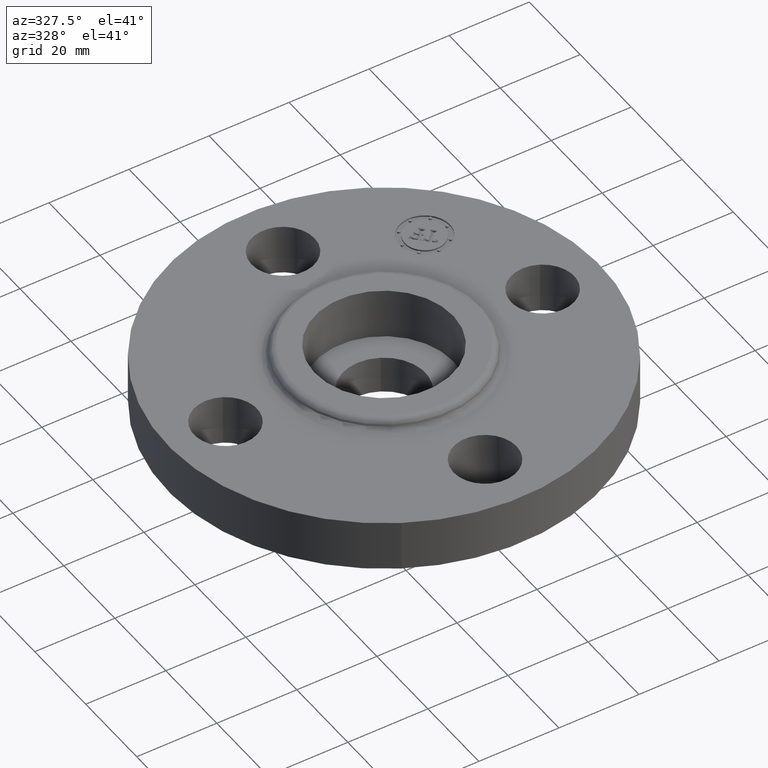
[diagram: clean part render]
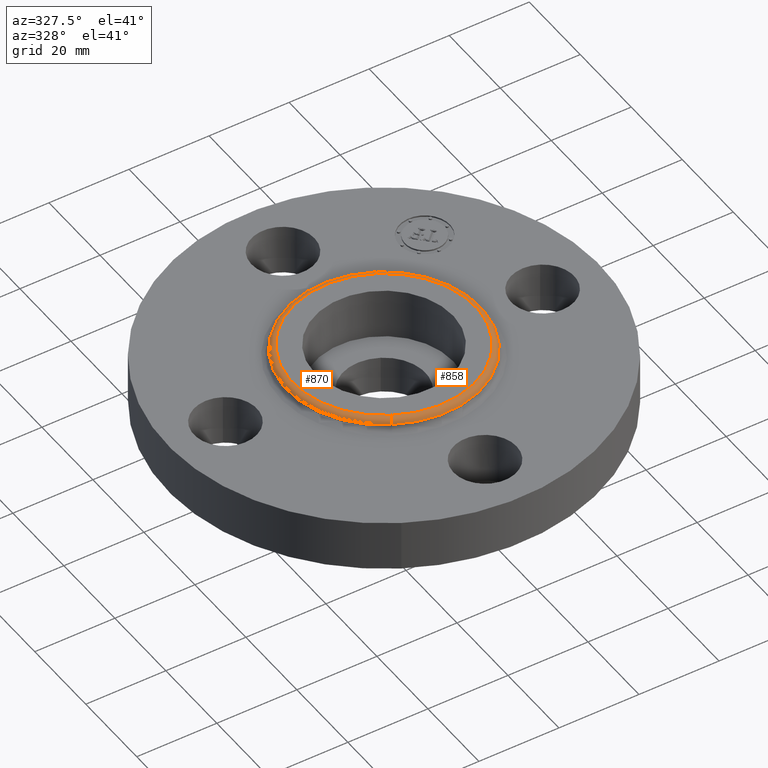
[diagram: same view with one multi-face feature highlighted, each face labeled with its STEP entity id]
A machine part, auxiliary view. The highlighted faces form ONE feature: a constant-radius fillet chain: 2 tangent blend faces with common blend radius 1.524 mm. The faces share edges in the B-rep.
Their STEP definitions:
[1] entity #870 (Torus):
#775=AXIS2_PLACEMENT_3D('Circle Axis2P3D',#773,#774,$) ;
#831=AXIS2_PLACEMENT_3D('Torus Axis2P3D',#828,#829,#830) ;
#835=AXIS2_PLACEMENT_3D('Circle Axis2P3D',#833,#834,$) ;
#849=AXIS2_PLACEMENT_3D('Circle Axis2P3D',#847,#848,$) ;
#861=AXIS2_PLACEMENT_3D('Circle Axis2P3D',#859,#860,$) ;
#751=CARTESIAN_POINT('Vertex',(0.459089865212,0.840358361433,0.570418890662)) ;
#758=CARTESIAN_POINT('Vertex',(-0.459089865212,-0.840358361433,0.570418890662)) ;
#773=CARTESIAN_POINT('Axis2P3D Location',(0.,0.,0.570418890662)) ;
#828=CARTESIAN_POINT('Axis2P3D Location',(0.,0.,0.560000000002)) ;
#833=CARTESIAN_POINT('Axis2P3D Location',(0.430761345967,0.788503354781,0.560000000002)) ;
#837=CARTESIAN_POINT('Vertex',(0.430761345967,0.788503354781,0.620000000002)) ;
#844=CARTESIAN_POINT('Vertex',(-0.430761345967,-0.788503354781,0.620000000002)) ;
#847=CARTESIAN_POINT('Axis2P3D Location',(-0.430761345967,-0.788503354781,0.560000000002)) ;
#859=CARTESIAN_POINT('Axis2P3D Location',(0.,0.,0.620000000002)) ;
#774=DIRECTION('Axis2P3D Direction',(0.,0.,-0.0393700787402)) ;
#829=DIRECTION('Axis2P3D Direction',(0.,0.,-0.0393700787402)) ;
#830=DIRECTION('Axis2P3D XDirection',(-0.0188750212049,-0.0345504945626,0.)) ;
#834=DIRECTION('Axis2P3D Direction',(-0.0345504945626,0.0188750212049,0.)) ;
#848=DIRECTION('Axis2P3D Direction',(0.0345504945626,-0.0188750212049,0.)) ;
#860=DIRECTION('Axis2P3D Direction',(0.,0.,-0.0393700787402)) ;
#865=ORIENTED_EDGE('',*,*,#777,.F.) ;
#866=ORIENTED_EDGE('',*,*,#851,.T.) ;
#867=ORIENTED_EDGE('',*,*,#863,.T.) ;
#868=ORIENTED_EDGE('',*,*,#839,.F.) ;
#870=ADVANCED_FACE('PartBody',(#869),#832,.T.) ;
#776=CIRCLE('generated circle',#775,0.957583249629) ;
#836=CIRCLE('generated circle',#835,0.0600000000002) ;
#850=CIRCLE('generated circle',#849,0.0600000000002) ;
#862=CIRCLE('generated circle',#861,0.898494784448) ;
#832=TOROIDAL_SURFACE('homeo Torus',#831,0.898494784448,0.0600000000002) ;
#777=EDGE_CURVE('',#759,#752,#776,.T.) ;
#839=EDGE_CURVE('',#752,#838,#836,.F.) ;
#851=EDGE_CURVE('',#759,#845,#850,.F.) ;
#863=EDGE_CURVE('',#845,#838,#862,.T.) ;
#864=EDGE_LOOP('',(#865,#866,#867,#868)) ;
#869=FACE_OUTER_BOUND('',#864,.T.) ;
#752=VERTEX_POINT('',#751) ;
#759=VERTEX_POINT('',#758) ;
#838=VERTEX_POINT('',#837) ;
#845=VERTEX_POINT('',#844) ;
[2] entity #858 (Torus):
#756=AXIS2_PLACEMENT_3D('Circle Axis2P3D',#754,#755,$) ;
#831=AXIS2_PLACEMENT_3D('Torus Axis2P3D',#828,#829,#830) ;
#835=AXIS2_PLACEMENT_3D('Circle Axis2P3D',#833,#834,$) ;
#842=AXIS2_PLACEMENT_3D('Circle Axis2P3D',#840,#841,$) ;
#849=AXIS2_PLACEMENT_3D('Circle Axis2P3D',#847,#848,$) ;
#751=CARTESIAN_POINT('Vertex',(0.459089865212,0.840358361433,0.570418890662)) ;
#754=CARTESIAN_POINT('Axis2P3D Location',(0.,0.,0.570418890662)) ;
#758=CARTESIAN_POINT('Vertex',(-0.459089865212,-0.840358361433,0.570418890662)) ;
#828=CARTESIAN_POINT('Axis2P3D Location',(0.,0.,0.560000000002)) ;
#833=CARTESIAN_POINT('Axis2P3D Location',(0.430761345967,0.788503354781,0.560000000002)) ;
#837=CARTESIAN_POINT('Vertex',(0.430761345967,0.788503354781,0.620000000002)) ;
#840=CARTESIAN_POINT('Axis2P3D Location',(0.,0.,0.620000000002)) ;
#844=CARTESIAN_POINT('Vertex',(-0.430761345967,-0.788503354781,0.620000000002)) ;
#847=CARTESIAN_POINT('Axis2P3D Location',(-0.430761345967,-0.788503354781,0.560000000002)) ;
#755=DIRECTION('Axis2P3D Direction',(0.,0.,-0.0393700787402)) ;
#829=DIRECTION('Axis2P3D Direction',(0.,0.,-0.0393700787402)) ;
#830=DIRECTION('Axis2P3D XDirection',(-0.0188750212049,-0.0345504945626,0.)) ;
#834=DIRECTION('Axis2P3D Direction',(-0.0345504945626,0.0188750212049,0.)) ;
#841=DIRECTION('Axis2P3D Direction',(0.,0.,-0.0393700787402)) ;
#848=DIRECTION('Axis2P3D Direction',(0.0345504945626,-0.0188750212049,0.)) ;
#853=ORIENTED_EDGE('',*,*,#760,.F.) ;
#854=ORIENTED_EDGE('',*,*,#839,.T.) ;
#855=ORIENTED_EDGE('',*,*,#846,.T.) ;
#856=ORIENTED_EDGE('',*,*,#851,.F.) ;
#858=ADVANCED_FACE('PartBody',(#857),#832,.T.) ;
#757=CIRCLE('generated circle',#756,0.957583249629) ;
#836=CIRCLE('generated circle',#835,0.0600000000002) ;
#843=CIRCLE('generated circle',#842,0.898494784448) ;
#850=CIRCLE('generated circle',#849,0.0600000000002) ;
#832=TOROIDAL_SURFACE('homeo Torus',#831,0.898494784448,0.0600000000002) ;
#760=EDGE_CURVE('',#752,#759,#757,.T.) ;
#839=EDGE_CURVE('',#752,#838,#836,.F.) ;
#846=EDGE_CURVE('',#838,#845,#843,.T.) ;
#851=EDGE_CURVE('',#759,#845,#850,.F.) ;
#852=EDGE_LOOP('',(#853,#854,#855,#856)) ;
#857=FACE_OUTER_BOUND('',#852,.T.) ;
#752=VERTEX_POINT('',#751) ;
#759=VERTEX_POINT('',#758) ;
#838=VERTEX_POINT('',#837) ;
#845=VERTEX_POINT('',#844) ;